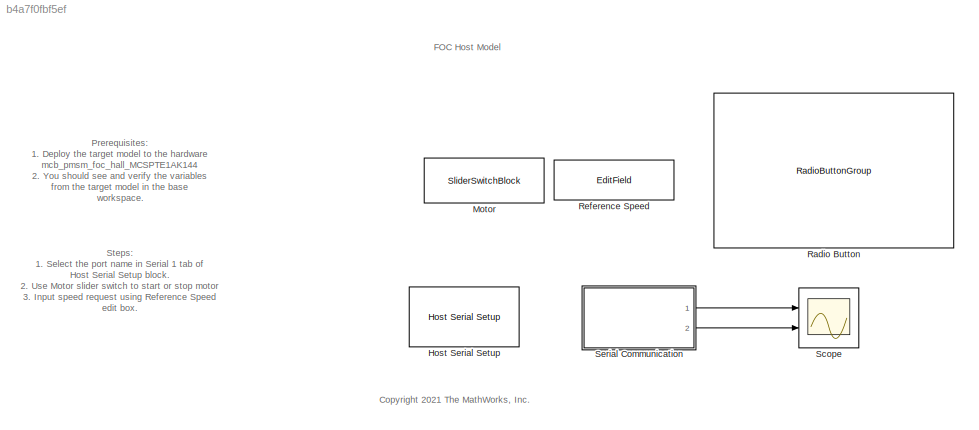
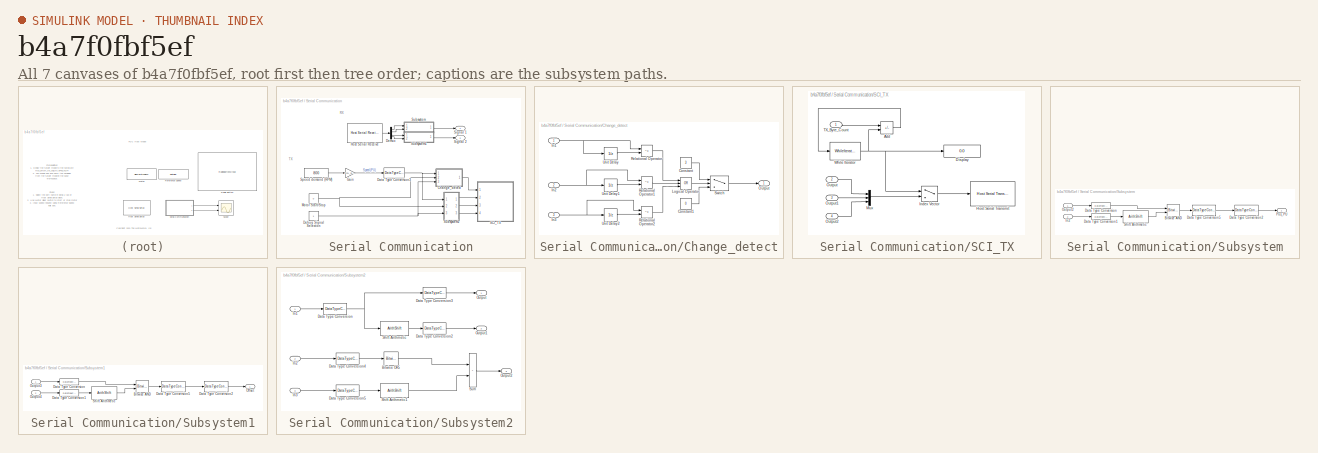
[diagram: thumbnail index - all 7 canvases of the model, root first then tree order]
MODEL slx_b4a7f0fbf5ef
KIND model
CONFIG AbsTol = auto
CONFIG EnableMultiTasking = on
CONFIG FixedStep = auto
CONFIG MaxStep = auto
CONFIG MinStep = auto
CONFIG RelTol = 1e-3
CONFIG SampleTimeConstraint = Unconstrained
CONFIG SolverName = FixedStepDiscrete
CONFIG StartTime = 0.0
CONFIG StopTime = inf
BLOCK [Reference] Host Serial Setup  REF=mcbhostblockslib/Host Serial Setup
  Ports = []
  Priority = -99
  SourceBlock = mcbhostblockslib/Host Serial Setup
  SourceProductBaseCode = MT
  SourceType = Host Serial Setup
BLOCK [SliderSwitchBlock] Motor
  LabelPosition = Hide
BLOCK [RadioButtonGroup] Radio Button
  ButtonGroupName = Debug signals
  LabelPosition = Hide
  SelectedLabel = Speed_ref & Speed_feedback
BLOCK [EditField] Reference Speed
  Alignment = Center
  LabelPosition = Hide
  ShowInitialText = on
BLOCK [Scope] Scope
  Floating = off
  NumInputPorts = 2
  Ports = [2]
  ScopeSpecificationString = Simulink.scopes.TimeScopeBlockCfg('CurrentConfiguration', extmgr.ConfigurationSet(extmgr.Configuration('Core','General UI',true),extmgr.Configuration('Core','Source UI',true),extmgr.Configuration('Sources','WiredSimulink',true),extmgr.Configuration('Visuals','Time Domain',true,'InputProcessing','FrameProcessing','SerializedDisplays',{struct('MinYLimReal','-0.30334','MaxYLimReal','0.30334','YLabelR...<+2348ch>
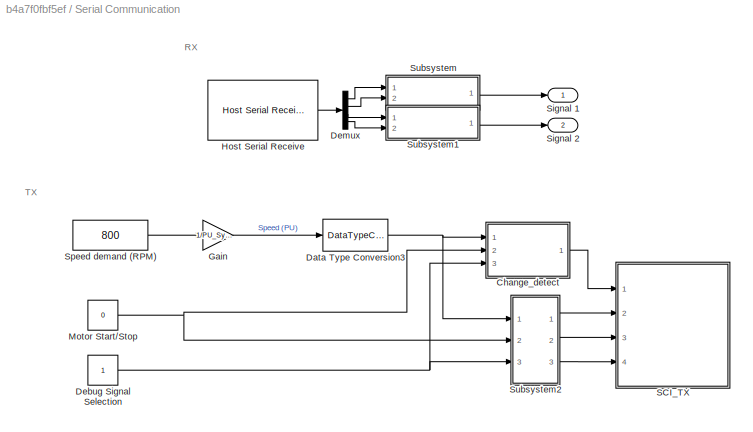
BLOCK [SubSystem] Serial Communication
  Ports = [0, 2]
  RequestExecContextInheritance = off
BLOCK [SubSystem] Serial Communication/Change_detect
  Ports = [3, 1]
  RequestExecContextInheritance = off
BLOCK [Constant] Serial Communication/Change_detect/Constant
  OutDataTypeStr = uint8
  Value = 3
BLOCK [Constant] Serial Communication/Change_detect/Constant1
  OutDataTypeStr = uint8
  Value = 0
BLOCK [Inport] Serial Communication/Change_detect/In1
BLOCK [Inport] Serial Communication/Change_detect/In2
  Port = 2
BLOCK [Inport] Serial Communication/Change_detect/In3
  Port = 3
BLOCK [Logic] Serial Communication/Change_detect/Logical Operator
  AllPortsSameDT = off
  Inputs = 3
  Operator = OR
  OutDataTypeStr = boolean
  Ports = [3, 1]
BLOCK [Outport] Serial Communication/Change_detect/Output
BLOCK [RelationalOperator] Serial Communication/Change_detect/Relational Operator
  InputSameDT = off
  Operator = ~=
  OutDataTypeStr = boolean
  Ports = [2, 1]
BLOCK [RelationalOperator] Serial Communication/Change_detect/Relational Operator1
  InputSameDT = off
  Operator = ~=
  OutDataTypeStr = boolean
  Ports = [2, 1]
BLOCK [RelationalOperator] Serial Communication/Change_detect/Relational Operator2
  InputSameDT = off
  Operator = ~=
  OutDataTypeStr = boolean
  Ports = [2, 1]
BLOCK [Switch] Serial Communication/Change_detect/Switch
  Criteria = u2 > Threshold
  InputSameDT = off
  SaturateOnIntegerOverflow = off
BLOCK [UnitDelay] Serial Communication/Change_detect/Unit Delay
  HasFrameUpgradeWarning = on
  InitialCondition = 0.5
  SampleTime = -1
BLOCK [UnitDelay] Serial Communication/Change_detect/Unit Delay1
  HasFrameUpgradeWarning = on
  SampleTime = -1
BLOCK [UnitDelay] Serial Communication/Change_detect/Unit Delay2
  HasFrameUpgradeWarning = on
  SampleTime = -1
BLOCK [DataTypeConversion] Serial Communication/Data Type Conversion3
  OutDataTypeStr = fixdt(1,16,12)
  RndMeth = Simplest
  SaturateOnIntegerOverflow = off
BLOCK [Constant] Serial Communication/Debug Signal Selection
  OutDataTypeStr = Inherit: Inherit via back propagation
BLOCK [Demux] Serial Communication/Demux
  Ports = [1, 4]
BLOCK [Gain] Serial Communication/Gain
  Gain = 1/PU_System.N_base
  OutDataTypeStr = Inherit: Same as input
  RndMeth = Simplest
BLOCK [Reference] Serial Communication/Host Serial Receive  REF=mcbhostblockslib/Host Serial Receive
  Ports = [0, 1]
  SourceBlock = mcbhostblockslib/Host Serial Receive
  SourceProductBaseCode = MT
  SourceType = Host Serial Receive
BLOCK [Constant] Serial Communication/Motor Start//Stop
  OutDataTypeStr = Inherit: Inherit via back propagation
  Value = 0
BLOCK [SubSystem] Serial Communication/SCI_TX
  Ports = [4]
  RequestExecContextInheritance = off
  TreatAsAtomicUnit = on
BLOCK [Sum] Serial Communication/SCI_TX/Add
  IconShape = rectangular
  Inputs = +-
  OutDataTypeStr = Inherit: Same as first input
  Ports = [2, 1]
BLOCK [Display] Serial Communication/SCI_TX/Display
  Decimation = 1
  Ports = [1]
BLOCK [Reference] Serial Communication/SCI_TX/Host Serial Transmit  REF=mcbhostblockslib/Host Serial Transmit
  Ports = [1]
  SourceBlock = mcbhostblockslib/Host Serial Transmit
  SourceProductBaseCode = MT
  SourceType = Host Serial Transmit
BLOCK [MultiPortSwitch] Serial Communication/SCI_TX/Index Vector
  InputSameDT = off
  Inputs = 1
  Ports = [2, 1]
  SaturateOnIntegerOverflow = off
BLOCK [Mux] Serial Communication/SCI_TX/Mux
  DisplayOption = bar
  Inputs = 3
  Ports = [3, 1]
BLOCK [Inport] Serial Communication/SCI_TX/Output
  Port = 2
BLOCK [Inport] Serial Communication/SCI_TX/Output1
  Port = 3
BLOCK [Inport] Serial Communication/SCI_TX/Output2
  Port = 4
BLOCK [Inport] Serial Communication/SCI_TX/TX_Byte_Count
BLOCK [WhileIterator] Serial Communication/SCI_TX/While Iterator
  MaxIters = 3
  OutputDataType = int16
  Ports = [1, 1]
  ShowIterationPort = on
  WhileBlockType = do-while
BLOCK [Outport] Serial Communication/Signal 1
BLOCK [Outport] Serial Communication/Signal 2
  Port = 2
BLOCK [Constant] Serial Communication/Speed demand (RPM)
  OutDataTypeStr = single
  SampleTime = Ts_uart * 100
  Value = 800
  VectorParams1D = off
BLOCK [SubSystem] Serial Communication/Subsystem
  NameLocation = top
  Ports = [2, 1]
  RequestExecContextInheritance = off
BLOCK [Reference] Serial Communication/Subsystem/Bitwise AND  REF=simulink/Logic and Bit
Operations/Bitwise
Operator
  Ports = [2, 1]
  SourceBlock = simulink/Logic and Bit\nOperations/Bitwise\nOperator
  SourceProductBaseCode = SL
  SourceType = Bitwise Operator
BLOCK [DataTypeConversion] Serial Communication/Subsystem/Data Type Conversion
  OutDataTypeStr = uint16
  RndMeth = Simplest
  SaturateOnIntegerOverflow = off
BLOCK [DataTypeConversion] Serial Communication/Subsystem/Data Type Conversion1
  OutDataTypeStr = uint16
  RndMeth = Simplest
  SaturateOnIntegerOverflow = off
BLOCK [DataTypeConversion] Serial Communication/Subsystem/Data Type Conversion2
  OutDataTypeStr = single
  RndMeth = Simplest
  SaturateOnIntegerOverflow = off
BLOCK [DataTypeConversion] Serial Communication/Subsystem/Data Type Conversion5
  ConvertRealWorld = Stored Integer (SI)
  OutDataTypeStr = fixdt(1,16,12)
  RndMeth = Simplest
  SaturateOnIntegerOverflow = off
BLOCK [Inport] Serial Communication/Subsystem/In2
  Port = 2
BLOCK [Inport] Serial Communication/Subsystem/Output2
BLOCK [Outport] Serial Communication/Subsystem/Pos_PU
BLOCK [ArithShift] Serial Communication/Subsystem/Shift Arithmetic
  BitShiftDirection = Left
  BitShiftNumber = 8
  InputPortMap = u0
  Ports = [1, 1]
BLOCK [SubSystem] Serial Communication/Subsystem1
  Ports = [2, 1]
  RequestExecContextInheritance = off
BLOCK [Reference] Serial Communication/Subsystem1/Bitwise AND  REF=simulink/Logic and Bit
Operations/Bitwise
Operator
  Ports = [2, 1]
  SourceBlock = simulink/Logic and Bit\nOperations/Bitwise\nOperator
  SourceProductBaseCode = SL
  SourceType = Bitwise Operator
BLOCK [DataTypeConversion] Serial Communication/Subsystem1/Data Type Conversion
  OutDataTypeStr = uint16
  RndMeth = Simplest
  SaturateOnIntegerOverflow = off
BLOCK [DataTypeConversion] Serial Communication/Subsystem1/Data Type Conversion1
  OutDataTypeStr = uint16
  RndMeth = Simplest
  SaturateOnIntegerOverflow = off
BLOCK [DataTypeConversion] Serial Communication/Subsystem1/Data Type Conversion2
  OutDataTypeStr = single
  RndMeth = Simplest
  SaturateOnIntegerOverflow = off
BLOCK [DataTypeConversion] Serial Communication/Subsystem1/Data Type Conversion5
  ConvertRealWorld = Stored Integer (SI)
  OutDataTypeStr = fixdt(1,16,12)
  RndMeth = Simplest
  SaturateOnIntegerOverflow = off
BLOCK [Outport] Serial Communication/Subsystem1/Offset
BLOCK [Inport] Serial Communication/Subsystem1/Output3
BLOCK [Inport] Serial Communication/Subsystem1/Output4
  Port = 2
BLOCK [ArithShift] Serial Communication/Subsystem1/Shift Arithmetic
  BitShiftDirection = Left
  BitShiftNumber = 8
  InputPortMap = u0
  Ports = [1, 1]
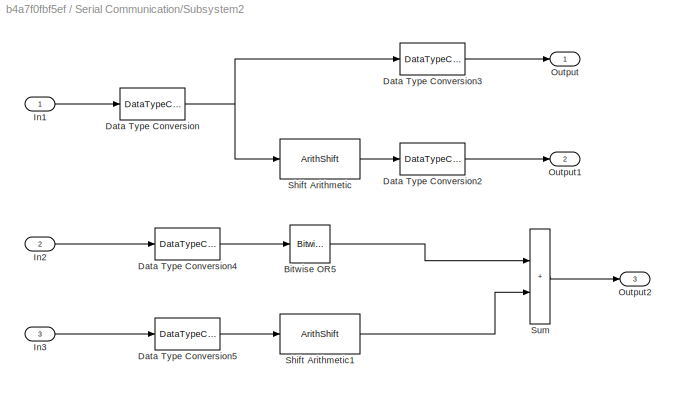
BLOCK [SubSystem] Serial Communication/Subsystem2
  Ports = [3, 3]
  RequestExecContextInheritance = off
BLOCK [Reference] Serial Communication/Subsystem2/Bitwise OR5  REF=simulink/Logic and Bit
Operations/Bitwise
Operator
  Ports = [1, 1]
  SourceBlock = simulink/Logic and Bit\nOperations/Bitwise\nOperator
  SourceProductBaseCode = SL
  SourceType = Bitwise Operator
BLOCK [DataTypeConversion] Serial Communication/Subsystem2/Data Type Conversion
  ConvertRealWorld = Stored Integer (SI)
  OutDataTypeStr = uint16
  RndMeth = Simplest
  SaturateOnIntegerOverflow = off
BLOCK [DataTypeConversion] Serial Communication/Subsystem2/Data Type Conversion2
  ConvertRealWorld = Stored Integer (SI)
  OutDataTypeStr = uint8
  RndMeth = Simplest
  SaturateOnIntegerOverflow = off
BLOCK [DataTypeConversion] Serial Communication/Subsystem2/Data Type Conversion3
  ConvertRealWorld = Stored Integer (SI)
  OutDataTypeStr = uint8
  RndMeth = Simplest
  SaturateOnIntegerOverflow = off
BLOCK [DataTypeConversion] Serial Communication/Subsystem2/Data Type Conversion4
  ConvertRealWorld = Stored Integer (SI)
  OutDataTypeStr = uint8
  RndMeth = Simplest
  SaturateOnIntegerOverflow = off
BLOCK [DataTypeConversion] Serial Communication/Subsystem2/Data Type Conversion5
  ConvertRealWorld = Stored Integer (SI)
  OutDataTypeStr = uint8
  RndMeth = Simplest
  SaturateOnIntegerOverflow = off
BLOCK [Inport] Serial Communication/Subsystem2/In1
BLOCK [Inport] Serial Communication/Subsystem2/In2
  Port = 2
BLOCK [Inport] Serial Communication/Subsystem2/In3
  Port = 3
BLOCK [Outport] Serial Communication/Subsystem2/Output
BLOCK [Outport] Serial Communication/Subsystem2/Output1
  Port = 2
BLOCK [Outport] Serial Communication/Subsystem2/Output2
  Port = 3
BLOCK [ArithShift] Serial Communication/Subsystem2/Shift Arithmetic
  BitShiftDirection = Right
  BitShiftNumber = 8
  InputPortMap = u0
  Ports = [1, 1]
BLOCK [ArithShift] Serial Communication/Subsystem2/Shift Arithmetic1
  BitShiftDirection = Left
  BitShiftNumber = 2
  InputPortMap = u0
  Ports = [1, 1]
BLOCK [Sum] Serial Communication/Subsystem2/Sum
  IconShape = rectangular
  Ports = [2, 1]
ANNOTATION (root): Prerequisites: 1. Deploy the target model to the hardware mcb_pmsm_foc_hall_MCSPTE1AK144 2. You should see and verify the variables from the target model in the base workspace.
ANNOTATION (root): Steps: 1. Select the port name in Serial 1 tab of Host Serial Setup block. 2. Use Motor slider switch to start or stop motor 3. Input speed request using Reference Speed edit box. 4. Observe the selected Debug signals in Scope
ANNOTATION (root): FOC Host Model
ANNOTATION (root): <copyright redacted>
ANNOTATION Serial Communication: RX
ANNOTATION Serial Communication: TX
LINE Serial Communication/Change_detect/Constant1:1 -> Serial Communication/Change_detect/Switch:3
LINE Serial Communication/Change_detect/Constant:1 -> Serial Communication/Change_detect/Switch:1
NET Serial Communication/Change_detect/In1:1 -> Serial Communication/Change_detect/Relational Operator:1, Serial Communication/Change_detect/Unit Delay:1
NET Serial Communication/Change_detect/In2:1 -> Serial Communication/Change_detect/Relational Operator1:1, Serial Communication/Change_detect/Unit Delay1:1
NET Serial Communication/Change_detect/In3:1 -> Serial Communication/Change_detect/Relational Operator2:1, Serial Communication/Change_detect/Unit Delay2:1
LINE Serial Communication/Change_detect/Logical Operator:1 -> Serial Communication/Change_detect/Switch:2
LINE Serial Communication/Change_detect/Relational Operator1:1 -> Serial Communication/Change_detect/Logical Operator:2
LINE Serial Communication/Change_detect/Relational Operator2:1 -> Serial Communication/Change_detect/Logical Operator:3
LINE Serial Communication/Change_detect/Relational Operator:1 -> Serial Communication/Change_detect/Logical Operator:1
LINE Serial Communication/Change_detect/Switch:1 -> Serial Communication/Change_detect/Output:1
LINE Serial Communication/Change_detect/Unit Delay1:1 -> Serial Communication/Change_detect/Relational Operator1:2
LINE Serial Communication/Change_detect/Unit Delay2:1 -> Serial Communication/Change_detect/Relational Operator2:2
LINE Serial Communication/Change_detect/Unit Delay:1 -> Serial Communication/Change_detect/Relational Operator:2
LINE Serial Communication/Change_detect:1 -> Serial Communication/SCI_TX:1
NET Serial Communication/Data Type Conversion3:1 -> Serial Communication/Change_detect:1, Serial Communication/Subsystem2:1
NET Serial Communication/Debug Signal Selection:1 -> Serial Communication/Change_detect:3, Serial Communication/Subsystem2:3
LINE Serial Communication/Demux:1 -> Serial Communication/Subsystem:1
LINE Serial Communication/Demux:2 -> Serial Communication/Subsystem:2
LINE Serial Communication/Demux:3 -> Serial Communication/Subsystem1:1
LINE Serial Communication/Demux:4 -> Serial Communication/Subsystem1:2
LINE Serial Communication/Gain:1 -> Serial Communication/Data Type Conversion3:1
LINE Serial Communication/Host Serial Receive:1 -> Serial Communication/Demux:1
NET Serial Communication/Motor Start//Stop:1 -> Serial Communication/Change_detect:2, Serial Communication/Subsystem2:2
LINE Serial Communication/SCI_TX/Add:1 -> Serial Communication/SCI_TX/While Iterator:1
LINE Serial Communication/SCI_TX/Index Vector:1 -> Serial Communication/SCI_TX/Host Serial Transmit:1
LINE Serial Communication/SCI_TX/Mux:1 -> Serial Communication/SCI_TX/Index Vector:2
LINE Serial Communication/SCI_TX/Output1:1 -> Serial Communication/SCI_TX/Mux:2
LINE Serial Communication/SCI_TX/Output2:1 -> Serial Communication/SCI_TX/Mux:3
LINE Serial Communication/SCI_TX/Output:1 -> Serial Communication/SCI_TX/Mux:1
LINE Serial Communication/SCI_TX/TX_Byte_Count:1 -> Serial Communication/SCI_TX/Add:1
NET Serial Communication/SCI_TX/While Iterator:1 -> Serial Communication/SCI_TX/Add:2, Serial Communication/SCI_TX/Display:1, Serial Communication/SCI_TX/Index Vector:1
LINE Serial Communication/Speed demand (RPM):1 -> Serial Communication/Gain:1
LINE Serial Communication/Subsystem/Bitwise AND:1 -> Serial Communication/Subsystem/Data Type Conversion5:1
LINE Serial Communication/Subsystem/Data Type Conversion1:1 -> Serial Communication/Subsystem/Shift Arithmetic:1
LINE Serial Communication/Subsystem/Data Type Conversion2:1 -> Serial Communication/Subsystem/Pos_PU:1
LINE Serial Communication/Subsystem/Data Type Conversion5:1 -> Serial Communication/Subsystem/Data Type Conversion2:1
LINE Serial Communication/Subsystem/Data Type Conversion:1 -> Serial Communication/Subsystem/Bitwise AND:1
LINE Serial Communication/Subsystem/In2:1 -> Serial Communication/Subsystem/Data Type Conversion1:1
LINE Serial Communication/Subsystem/Output2:1 -> Serial Communication/Subsystem/Data Type Conversion:1
LINE Serial Communication/Subsystem/Shift Arithmetic:1 -> Serial Communication/Subsystem/Bitwise AND:2
LINE Serial Communication/Subsystem1/Bitwise AND:1 -> Serial Communication/Subsystem1/Data Type Conversion5:1
LINE Serial Communication/Subsystem1/Data Type Conversion1:1 -> Serial Communication/Subsystem1/Shift Arithmetic:1
LINE Serial Communication/Subsystem1/Data Type Conversion2:1 -> Serial Communication/Subsystem1/Offset:1
LINE Serial Communication/Subsystem1/Data Type Conversion5:1 -> Serial Communication/Subsystem1/Data Type Conversion2:1
LINE Serial Communication/Subsystem1/Data Type Conversion:1 -> Serial Communication/Subsystem1/Bitwise AND:1
LINE Serial Communication/Subsystem1/Output3:1 -> Serial Communication/Subsystem1/Data Type Conversion:1
LINE Serial Communication/Subsystem1/Output4:1 -> Serial Communication/Subsystem1/Data Type Conversion1:1
LINE Serial Communication/Subsystem1/Shift Arithmetic:1 -> Serial Communication/Subsystem1/Bitwise AND:2
LINE Serial Communication/Subsystem1:1 -> Serial Communication/Signal 2:1
LINE Serial Communication/Subsystem2/Bitwise OR5:1 -> Serial Communication/Subsystem2/Sum:1
LINE Serial Communication/Subsystem2/Data Type Conversion2:1 -> Serial Communication/Subsystem2/Output1:1
LINE Serial Communication/Subsystem2/Data Type Conversion3:1 -> Serial Communication/Subsystem2/Output:1
LINE Serial Communication/Subsystem2/Data Type Conversion4:1 -> Serial Communication/Subsystem2/Bitwise OR5:1
LINE Serial Communication/Subsystem2/Data Type Conversion5:1 -> Serial Communication/Subsystem2/Shift Arithmetic1:1
NET Serial Communication/Subsystem2/Data Type Conversion:1 -> Serial Communication/Subsystem2/Data Type Conversion3:1, Serial Communication/Subsystem2/Shift Arithmetic:1
LINE Serial Communication/Subsystem2/In1:1 -> Serial Communication/Subsystem2/Data Type Conversion:1
LINE Serial Communication/Subsystem2/In2:1 -> Serial Communication/Subsystem2/Data Type Conversion4:1
LINE Serial Communication/Subsystem2/In3:1 -> Serial Communication/Subsystem2/Data Type Conversion5:1
LINE Serial Communication/Subsystem2/Shift Arithmetic1:1 -> Serial Communication/Subsystem2/Sum:2
LINE Serial Communication/Subsystem2/Shift Arithmetic:1 -> Serial Communication/Subsystem2/Data Type Conversion2:1
LINE Serial Communication/Subsystem2/Sum:1 -> Serial Communication/Subsystem2/Output2:1
LINE Serial Communication/Subsystem2:1 -> Serial Communication/SCI_TX:2
LINE Serial Communication/Subsystem2:2 -> Serial Communication/SCI_TX:3
LINE Serial Communication/Subsystem2:3 -> Serial Communication/SCI_TX:4
LINE Serial Communication/Subsystem:1 -> Serial Communication/Signal 1:1
LINE Serial Communication:1 -> Scope:1
LINE Serial Communication:2 -> Scope:2
note: NET lines group one-source signal fan-out (src -> all destinations, sorted); 1:1 wires keep LINE
